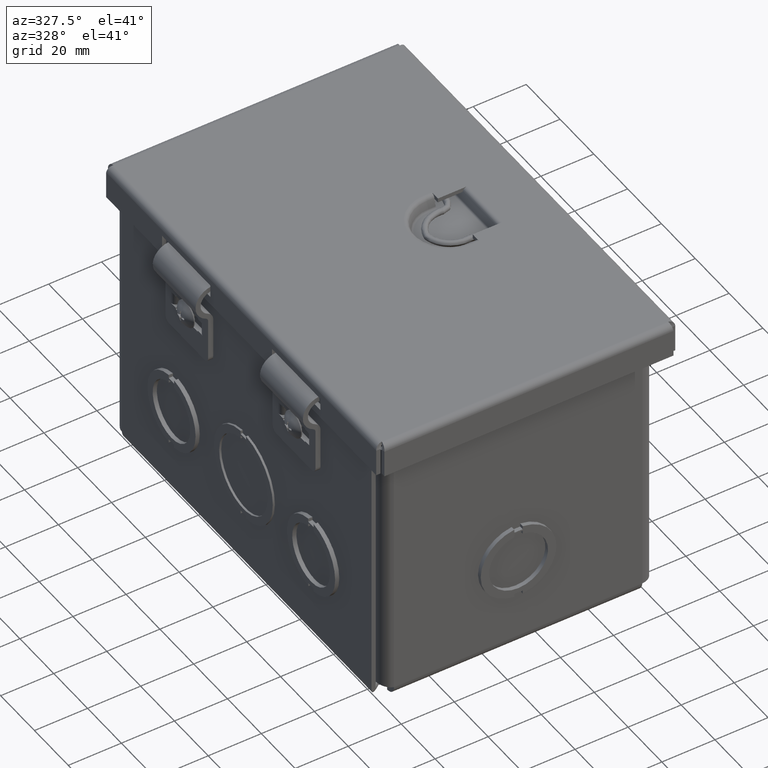
[diagram: clean part render]
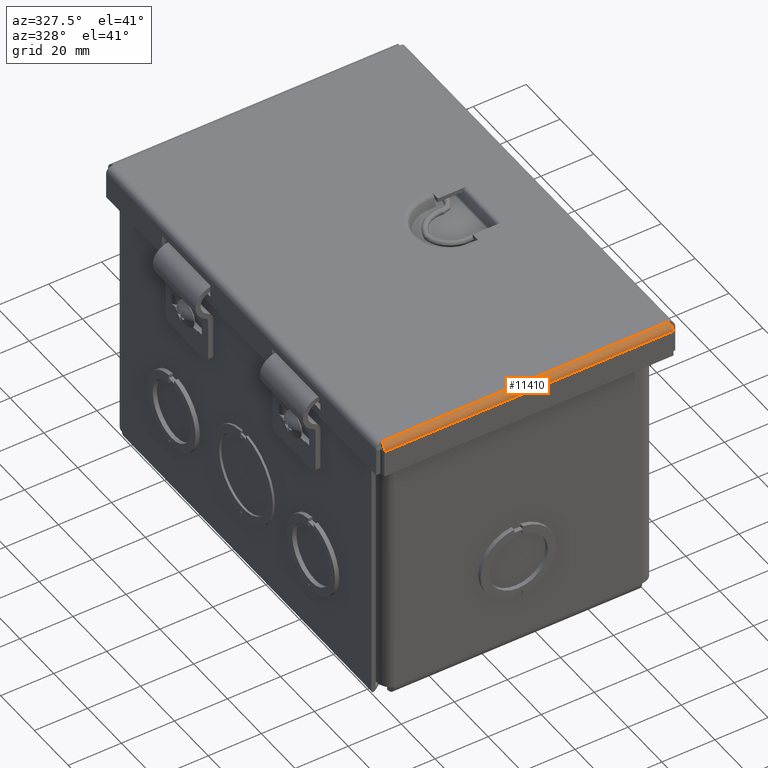
[diagram: same view with one face highlighted and labeled with its STEP entity id]
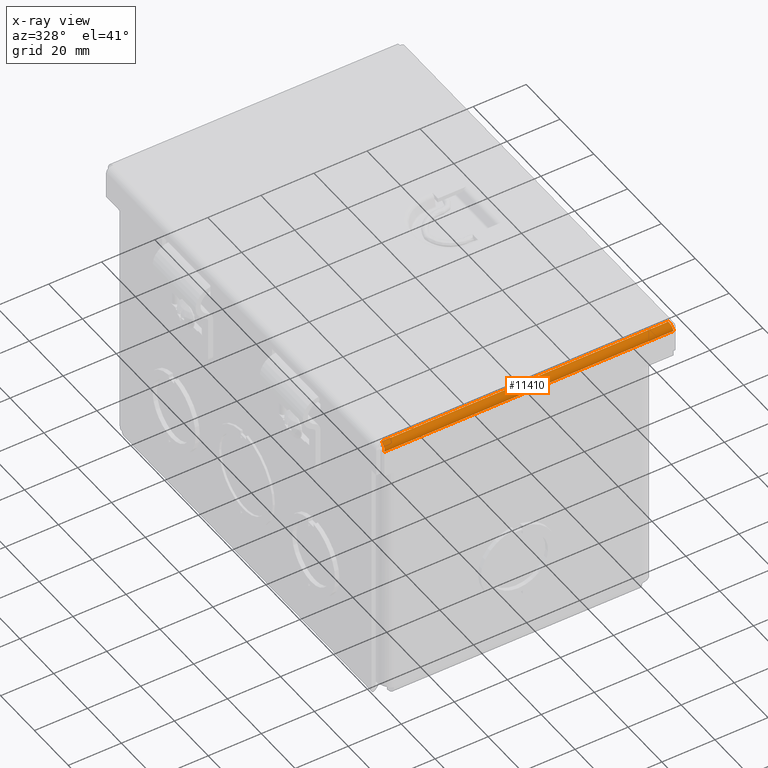
[diagram: x-ray of the same camera — body ghosted, the highlighted face saturated]
A machine part, auxiliary view. The second image highlights one B-rep face of the part: STEP entity #11410.
The next image is the same camera in x-ray: the body ghosted, the highlighted face saturated — about 0% of this face is hidden behind the body in this view.
In plain terms, the highlighted cylindrical surface (edge-blend (fillet) strip) has radius 2.3685 mm, axis along (1, -0, -0).
Its self-contained STEP definition (entity closure, byte-faithful):
#190=B_SPLINE_CURVE_WITH_KNOTS($,3,(#19735,#19736,#19737,#19738,#19739,
#19740,#19741),.UNSPECIFIED.,.F.,.F.,(4,3,4),(0.,0.89759790102566,1.57079632679491),
 .UNSPECIFIED.);
#191=B_SPLINE_CURVE_WITH_KNOTS($,3,(#19743,#19744,#19745,#19746,#19747,
#19748,#19749),.UNSPECIFIED.,.F.,.F.,(4,3,4),(0.,0.673198425769238,1.57079632679489),
 .UNSPECIFIED.);
#433=CYLINDRICAL_SURFACE($,#12296,0.0932499999999999);
#1442=LINE($,#19733,#2472);
#1443=LINE($,#19742,#2473);
#2472=VECTOR($,#15008,4.29040291308792);
#2473=VECTOR($,#15009,4.25);
#3615=FACE_OUTER_BOUND($,#4369,.T.);
#4369=EDGE_LOOP($,(#10011,#10012,#10013,#10014));
#5566=VERTEX_POINT($,#19634);
#5574=VERTEX_POINT($,#19731);
#5575=VERTEX_POINT($,#19732);
#5576=VERTEX_POINT($,#19734);
#7016=EDGE_CURVE($,#5574,#5575,#1442,.T.);
#7017=EDGE_CURVE($,#5576,#5574,#190,.T.);
#7018=EDGE_CURVE($,#5576,#5566,#1443,.T.);
#7019=EDGE_CURVE($,#5575,#5566,#191,.T.);
#10011=ORIENTED_EDGE($,*,*,#7016,.F.);
#10012=ORIENTED_EDGE($,*,*,#7017,.F.);
#10013=ORIENTED_EDGE($,*,*,#7018,.T.);
#10014=ORIENTED_EDGE($,*,*,#7019,.F.);
#11410=ADVANCED_FACE($,(#3615),#433,.T.);
#12296=AXIS2_PLACEMENT_3D($,#19730,#15006,#15007);
#15006=DIRECTION('center_axis',(1.,8.22768336915355E-017,0.));
#15007=DIRECTION('ref_axis',(0.,0.,1.));
#15008=DIRECTION($,(-1.,-2.95182583568358E-016,4.17319915161E-030));
#15009=DIRECTION($,(-1.,-8.22768336915355E-017,0.));
#19634=CARTESIAN_POINT('',(-2.125,-3.125,0.062));
#19730=CARTESIAN_POINT('Origin',(-3.49676543189026E-016,-3.125,-0.0312499999999999));
#19731=CARTESIAN_POINT('',(2.14520145654396,-3.21825,-0.0312499999999982));
#19732=CARTESIAN_POINT('',(-2.14520145654396,-3.21825,-0.0312499999999975));
#19733=CARTESIAN_POINT($,(-1.71725066780619E-016,-3.21825,-0.0312499999999975));
#19734=CARTESIAN_POINT('',(2.125,-3.125,0.062));
#19735=CARTESIAN_POINT('Ctrl Pts',(2.125,-3.125,0.062));
#19736=CARTESIAN_POINT('Ctrl Pts',(2.12884789648456,-3.15290033475688,0.062));
#19737=CARTESIAN_POINT('Ctrl Pts',(2.13269579296913,-3.18048850148345,0.0486068452387487));
#19738=CARTESIAN_POINT('Ctrl Pts',(2.13654368945369,-3.19788600101006,0.026903908512449));
#19739=CARTESIAN_POINT('Ctrl Pts',(2.13942961181711,-3.21093412565502,0.0106267059677243));
#19740=CARTESIAN_POINT('Ctrl Pts',(2.14231553418054,-3.21825,-0.01032474893234));
#19741=CARTESIAN_POINT('Ctrl Pts',(2.14520145654396,-3.21825,-0.0312500000000007));
#19742=CARTESIAN_POINT($,(2.125,-3.125,0.062));
#19743=CARTESIAN_POINT('Ctrl Pts',(-2.14520145654396,-3.21825,-0.0312499999999981));
#19744=CARTESIAN_POINT('Ctrl Pts',(-2.14231553418054,-3.21825,-0.0103247489323377));
#19745=CARTESIAN_POINT('Ctrl Pts',(-2.13942961181711,-3.21093412565502,
0.0106267059677261));
#19746=CARTESIAN_POINT('Ctrl Pts',(-2.13654368945369,-3.19788600101006,
0.0269039085124503));
#19747=CARTESIAN_POINT('Ctrl Pts',(-2.13269579296913,-3.18048850148345,
0.0486068452387492));
#19748=CARTESIAN_POINT('Ctrl Pts',(-2.12884789648456,-3.15290033475688,
0.0619999999999999));
#19749=CARTESIAN_POINT('Ctrl Pts',(-2.125,-3.125,0.0620000000000002));